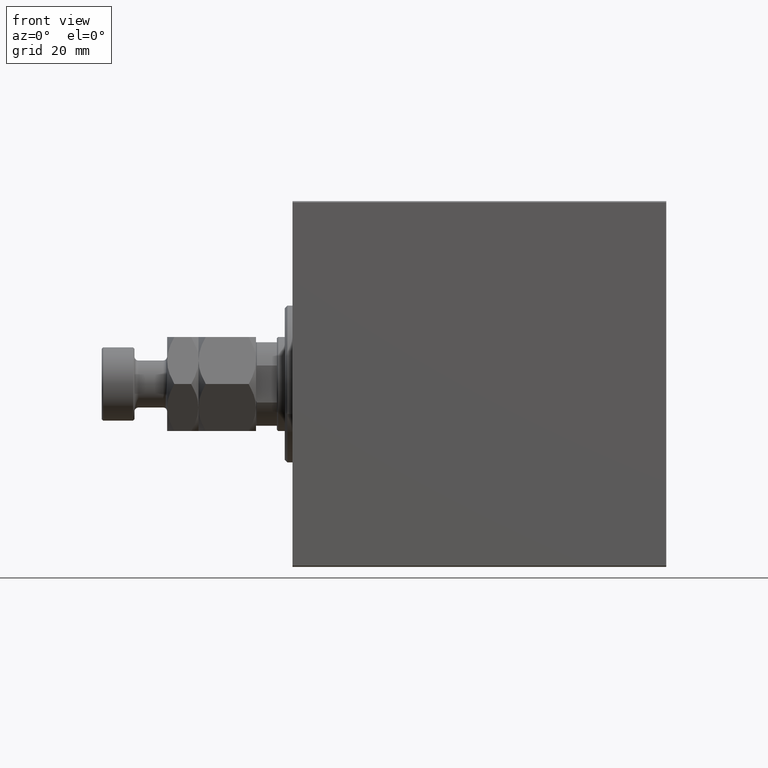
[diagram: clean part render]
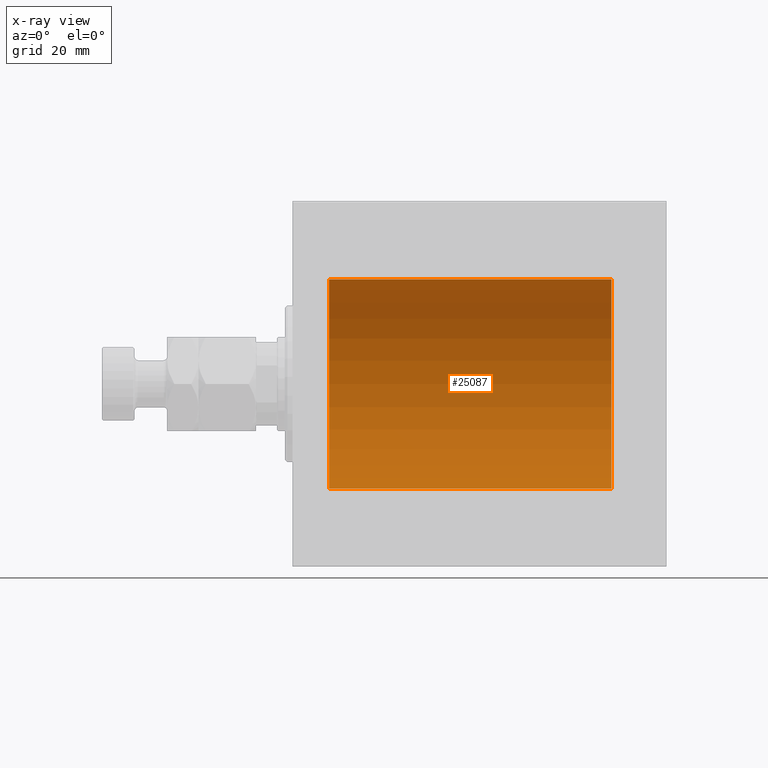
[diagram: x-ray — body ghosted, one internal face saturated and labeled with its STEP entity id]
A machine part, front view, then the same camera in x-ray: the body is ghosted and one INTERNAL B-rep face — a face not visible from any outside direction — is saturated and labeled: STEP entity #25087.
In plain terms, the highlighted cylindrical surface (partial cylindrical patch) has radius 40 mm, axis along (-1, -0, -0).
Its self-contained STEP definition (entity closure, byte-faithful):
#1182 = CARTESIAN_POINT ( 'NONE',  ( 13.99999999999999822, 0.000000000000000000, 0.000000000000000000 ) ) ;
#1548 = ORIENTED_EDGE ( 'NONE', *, *, #44297, .T. ) ;
#1608 = CYLINDRICAL_SURFACE ( 'NONE', #22858, 40.00000000000000000 ) ;
#2857 = VERTEX_POINT ( 'NONE', #44084 ) ;
#5544 = EDGE_CURVE ( 'NONE', #2857, #8239, #39360, .T. ) ;
#6034 = CARTESIAN_POINT ( 'NONE',  ( 122.0000000000000000, 0.000000000000000000, 40.00000000000000000 ) ) ;
#6550 = LINE ( 'NONE', #30968, #24493 ) ;
#8239 = VERTEX_POINT ( 'NONE', #11440 ) ;
#9243 = LINE ( 'NONE', #6034, #44743 ) ;
#9630 = CARTESIAN_POINT ( 'NONE',  ( 122.0000000000000000, 0.000000000000000000, 0.000000000000000000 ) ) ;
#10191 = VERTEX_POINT ( 'NONE', #25777 ) ;
#11440 = CARTESIAN_POINT ( 'NONE',  ( 122.0000000000000000, 4.898587196589412237E-15, -40.00000000000000000 ) ) ;
#12409 = CARTESIAN_POINT ( 'NONE',  ( 122.0000000000000000, 0.000000000000000000, 0.000000000000000000 ) ) ;
#14411 = EDGE_CURVE ( 'NONE', #2857, #31595, #9243, .T. ) ;
#15207 = ORIENTED_EDGE ( 'NONE', *, *, #34408, .F. ) ;
#15415 = DIRECTION ( 'NONE',  ( -1.000000000000000000, -0.000000000000000000, -0.000000000000000000 ) ) ;
#19560 = DIRECTION ( 'NONE',  ( -1.000000000000000000, 0.000000000000000000, 0.000000000000000000 ) ) ;
#19865 = DIRECTION ( 'NONE',  ( -1.000000000000000000, -0.000000000000000000, -0.000000000000000000 ) ) ;
#20164 = DIRECTION ( 'NONE',  ( -1.000000000000000000, -0.000000000000000000, -0.000000000000000000 ) ) ;
#22380 = DIRECTION ( 'NONE',  ( -1.000000000000000000, 0.000000000000000000, 0.000000000000000000 ) ) ;
#22858 = AXIS2_PLACEMENT_3D ( 'NONE', #12409, #15415, #29484 ) ;
#23176 = CIRCLE ( 'NONE', #34937, 40.00000000000000000 ) ;
#23705 = DIRECTION ( 'NONE',  ( 0.000000000000000000, 0.000000000000000000, 1.000000000000000000 ) ) ;
#24493 = VECTOR ( 'NONE', #20164, 1000.000000000000000 ) ;
#25087 = ADVANCED_FACE ( 'NONE', ( #26481 ), #1608, .F. ) ;
#25777 = CARTESIAN_POINT ( 'NONE',  ( 13.99999999999999822, 4.898587196589412237E-15, -40.00000000000000000 ) ) ;
#26009 = CARTESIAN_POINT ( 'NONE',  ( 13.99999999999999822, 0.000000000000000000, 40.00000000000000000 ) ) ;
#26481 = FACE_OUTER_BOUND ( 'NONE', #45572, .T. ) ;
#29484 = DIRECTION ( 'NONE',  ( 0.000000000000000000, 0.000000000000000000, 1.000000000000000000 ) ) ;
#30968 = CARTESIAN_POINT ( 'NONE',  ( 122.0000000000000000, 4.898587196589412237E-15, -40.00000000000000000 ) ) ;
#31595 = VERTEX_POINT ( 'NONE', #26009 ) ;
#33447 = ORIENTED_EDGE ( 'NONE', *, *, #14411, .T. ) ;
#34408 = EDGE_CURVE ( 'NONE', #8239, #10191, #6550, .T. ) ;
#34924 = AXIS2_PLACEMENT_3D ( 'NONE', #9630, #19560, #23705 ) ;
#34937 = AXIS2_PLACEMENT_3D ( 'NONE', #1182, #22380, #43311 ) ;
#37225 = ORIENTED_EDGE ( 'NONE', *, *, #5544, .F. ) ;
#39360 = CIRCLE ( 'NONE', #34924, 40.00000000000000000 ) ;
#43311 = DIRECTION ( 'NONE',  ( 0.000000000000000000, 0.000000000000000000, 1.000000000000000000 ) ) ;
#44084 = CARTESIAN_POINT ( 'NONE',  ( 122.0000000000000000, 0.000000000000000000, 40.00000000000000000 ) ) ;
#44297 = EDGE_CURVE ( 'NONE', #31595, #10191, #23176, .T. ) ;
#44743 = VECTOR ( 'NONE', #19865, 1000.000000000000000 ) ;
#45572 = EDGE_LOOP ( 'NONE', ( #15207, #37225, #33447, #1548 ) ) ;